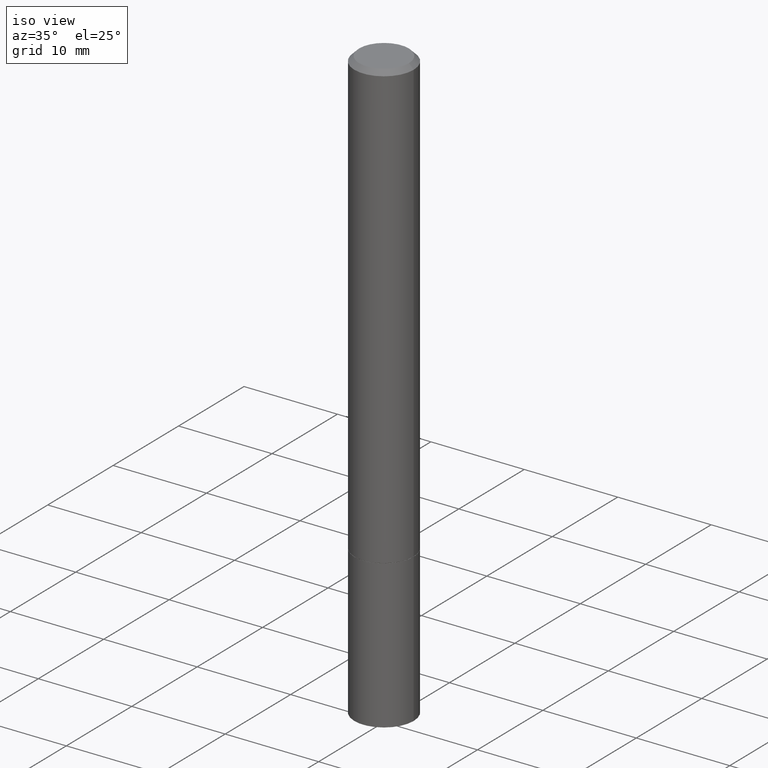
[diagram: clean part render]
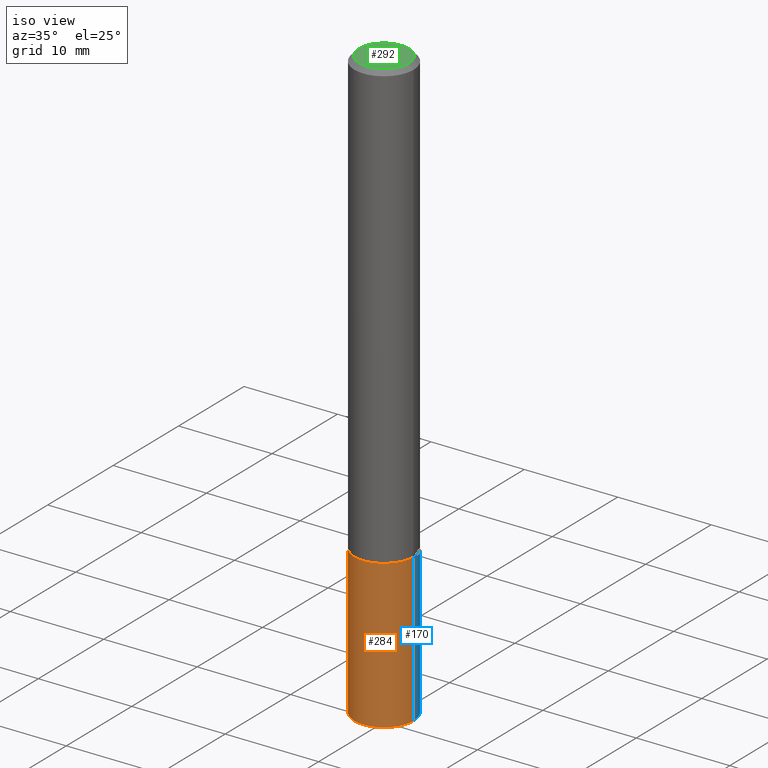
[diagram: same view with three faces highlighted in distinct colors, each labeled with its STEP entity id]
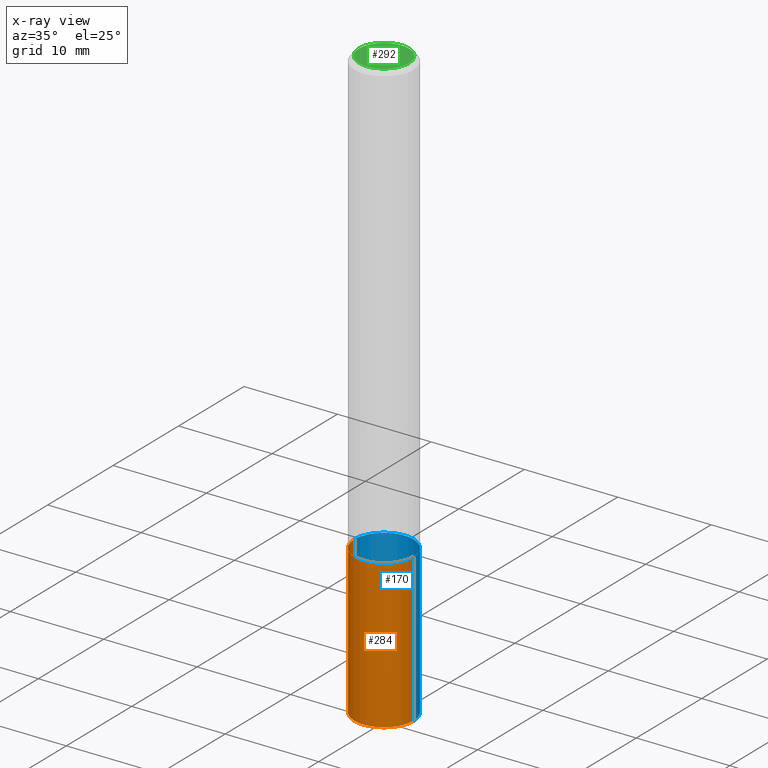
[diagram: x-ray of the same camera — body ghosted, the three highlighted faces saturated]
A machine part, iso view with three faces highlighted in distinct colors.
The next image is the same camera in x-ray (body ghosted, the three faces saturated) — at least one of them is partly hidden behind the body in this view.
Their STEP definitions:

[orange] entity #284 — the highlighted cylindrical surface (edge-blend (fillet) strip) has radius 3.175 mm, axis along (-0, 0, 1).
#5 = CARTESIAN_POINT ( 'NONE',  ( 0.1250000000000000278, -9.601573681818648281E-15, -2.500000000000000000 ) ) ;
#6 = CYLINDRICAL_SURFACE ( 'NONE', #139, 0.1250000000000000278 ) ;
#31 = CARTESIAN_POINT ( 'NONE',  ( 0.1250000000000000278, -7.419397845041682046E-15, -1.875000000000000000 ) ) ;
#34 = FACE_OUTER_BOUND ( 'NONE', #186, .T. ) ;
#38 = CARTESIAN_POINT ( 'NONE',  ( 0.1250000000000000278, -8.728703347107836346E-16, 6.095220969744921142E-30 ) ) ;
#40 = VERTEX_POINT ( 'NONE', #161 ) ;
#62 = LINE ( 'NONE', #38, #347 ) ;
#67 = CIRCLE ( 'NONE', #214, 0.1250000000000000278 ) ;
#92 = EDGE_CURVE ( 'NONE', #40, #356, #312, .T. ) ;
#102 = ORIENTED_EDGE ( 'NONE', *, *, #310, .T. ) ;
#122 = ORIENTED_EDGE ( 'NONE', *, *, #135, .T. ) ;
#135 = EDGE_CURVE ( 'NONE', #40, #242, #287, .T. ) ;
#139 = AXIS2_PLACEMENT_3D ( 'NONE', #265, #169, #264 ) ;
#148 = VECTOR ( 'NONE', #222, 39.37007874015748143 ) ;
#149 = ORIENTED_EDGE ( 'NONE', *, *, #210, .F. ) ;
#158 = ORIENTED_EDGE ( 'NONE', *, *, #92, .F. ) ;
#161 = CARTESIAN_POINT ( 'NONE',  ( -0.1250000000000000278, -6.749437009019256592E-15, -2.500000000000000000 ) ) ;
#167 = DIRECTION ( 'NONE',  ( -2.445468806185136877E-29, 3.491481338843145188E-15, 1.000000000000000000 ) ) ;
#169 = DIRECTION ( 'NONE',  ( -2.445468806185136597E-29, 3.491481338843145583E-15, 1.000000000000000000 ) ) ;
#186 = EDGE_LOOP ( 'NONE', ( #158, #122, #102, #149 ) ) ;
#188 = DIRECTION ( 'NONE',  ( -2.445468806185136597E-29, 3.491481338843145583E-15, 1.000000000000000000 ) ) ;
#205 = VERTEX_POINT ( 'NONE', #31 ) ;
#210 = EDGE_CURVE ( 'NONE', #356, #205, #67, .T. ) ;
#214 = AXIS2_PLACEMENT_3D ( 'NONE', #291, #319, #348 ) ;
#222 = DIRECTION ( 'NONE',  ( -2.445468806185136877E-29, 3.491481338843145188E-15, 1.000000000000000000 ) ) ;
#237 = CARTESIAN_POINT ( 'NONE',  ( -0.1250000000000000278, -6.749437009019256592E-15, -1.875000000000000000 ) ) ;
#242 = VERTEX_POINT ( 'NONE', #5 ) ;
#252 = CARTESIAN_POINT ( 'NONE',  ( -0.1250000000000000278, 8.881784197001254296E-16, -6.148668862818634329E-30 ) ) ;
#264 = DIRECTION ( 'NONE',  ( 1.000000000000000000, -6.982962677686267499E-15, 4.876176775795935793E-29 ) ) ;
#265 = CARTESIAN_POINT ( 'NONE',  ( 0.000000000000000000, 0.000000000000000000, 0.000000000000000000 ) ) ;
#280 = DIRECTION ( 'NONE',  ( 1.000000000000000000, -6.982962677686269077E-15, 0.000000000000000000 ) ) ;
#284 = ADVANCED_FACE ( 'NONE', ( #34 ), #6, .T. ) ;
#287 = CIRCLE ( 'NONE', #335, 0.1250000000000000278 ) ;
#291 = CARTESIAN_POINT ( 'NONE',  ( 4.585254011597131119E-29, -6.546527510330898707E-15, -1.875000000000000000 ) ) ;
#310 = EDGE_CURVE ( 'NONE', #242, #205, #62, .T. ) ;
#312 = LINE ( 'NONE', #252, #148 ) ;
#319 = DIRECTION ( 'NONE',  ( -2.445468806185136597E-29, 3.491481338843145583E-15, 1.000000000000000000 ) ) ;
#335 = AXIS2_PLACEMENT_3D ( 'NONE', #345, #188, #280 ) ;
#345 = CARTESIAN_POINT ( 'NONE',  ( 6.113672015462842613E-29, -8.728703347107864943E-15, -2.500000000000000000 ) ) ;
#347 = VECTOR ( 'NONE', #167, 39.37007874015748143 ) ;
#348 = DIRECTION ( 'NONE',  ( 1.000000000000000000, -6.982962677686269077E-15, 0.000000000000000000 ) ) ;
#356 = VERTEX_POINT ( 'NONE', #237 ) ;

[blue] entity #170 — the highlighted cylindrical surface (edge-blend (fillet) strip) has radius 3.175 mm, axis along (-0, 0, 1).
#2 = CARTESIAN_POINT ( 'NONE',  ( 0.000000000000000000, 0.000000000000000000, 0.000000000000000000 ) ) ;
#5 = CARTESIAN_POINT ( 'NONE',  ( 0.1250000000000000278, -9.601573681818648281E-15, -2.500000000000000000 ) ) ;
#24 = AXIS2_PLACEMENT_3D ( 'NONE', #340, #56, #61 ) ;
#31 = CARTESIAN_POINT ( 'NONE',  ( 0.1250000000000000278, -7.419397845041682046E-15, -1.875000000000000000 ) ) ;
#38 = CARTESIAN_POINT ( 'NONE',  ( 0.1250000000000000278, -8.728703347107836346E-16, 6.095220969744921142E-30 ) ) ;
#40 = VERTEX_POINT ( 'NONE', #161 ) ;
#56 = DIRECTION ( 'NONE',  ( -2.445468806185136597E-29, 3.491481338843145583E-15, 1.000000000000000000 ) ) ;
#61 = DIRECTION ( 'NONE',  ( 1.000000000000000000, -6.982962677686269077E-15, 0.000000000000000000 ) ) ;
#62 = LINE ( 'NONE', #38, #347 ) ;
#80 = CIRCLE ( 'NONE', #24, 0.1250000000000000278 ) ;
#87 = DIRECTION ( 'NONE',  ( 1.000000000000000000, -6.982962677686269077E-15, 0.000000000000000000 ) ) ;
#92 = EDGE_CURVE ( 'NONE', #40, #356, #312, .T. ) ;
#98 = AXIS2_PLACEMENT_3D ( 'NONE', #2, #134, #111 ) ;
#105 = CYLINDRICAL_SURFACE ( 'NONE', #98, 0.1250000000000000278 ) ;
#111 = DIRECTION ( 'NONE',  ( 1.000000000000000000, -6.982962677686267499E-15, 4.876176775795935793E-29 ) ) ;
#119 = CIRCLE ( 'NONE', #357, 0.1250000000000000278 ) ;
#120 = ORIENTED_EDGE ( 'NONE', *, *, #92, .T. ) ;
#121 = EDGE_CURVE ( 'NONE', #242, #40, #80, .T. ) ;
#130 = ORIENTED_EDGE ( 'NONE', *, *, #310, .F. ) ;
#134 = DIRECTION ( 'NONE',  ( -2.445468806185136597E-29, 3.491481338843145583E-15, 1.000000000000000000 ) ) ;
#148 = VECTOR ( 'NONE', #222, 39.37007874015748143 ) ;
#161 = CARTESIAN_POINT ( 'NONE',  ( -0.1250000000000000278, -6.749437009019256592E-15, -2.500000000000000000 ) ) ;
#162 = EDGE_CURVE ( 'NONE', #205, #356, #119, .T. ) ;
#167 = DIRECTION ( 'NONE',  ( -2.445468806185136877E-29, 3.491481338843145188E-15, 1.000000000000000000 ) ) ;
#170 = ADVANCED_FACE ( 'NONE', ( #249 ), #105, .T. ) ;
#205 = VERTEX_POINT ( 'NONE', #31 ) ;
#222 = DIRECTION ( 'NONE',  ( -2.445468806185136877E-29, 3.491481338843145188E-15, 1.000000000000000000 ) ) ;
#237 = CARTESIAN_POINT ( 'NONE',  ( -0.1250000000000000278, -6.749437009019256592E-15, -1.875000000000000000 ) ) ;
#242 = VERTEX_POINT ( 'NONE', #5 ) ;
#249 = FACE_OUTER_BOUND ( 'NONE', #331, .T. ) ;
#252 = CARTESIAN_POINT ( 'NONE',  ( -0.1250000000000000278, 8.881784197001254296E-16, -6.148668862818634329E-30 ) ) ;
#255 = DIRECTION ( 'NONE',  ( -2.445468806185136597E-29, 3.491481338843145583E-15, 1.000000000000000000 ) ) ;
#283 = ORIENTED_EDGE ( 'NONE', *, *, #162, .F. ) ;
#286 = CARTESIAN_POINT ( 'NONE',  ( 4.585254011597131119E-29, -6.546527510330898707E-15, -1.875000000000000000 ) ) ;
#310 = EDGE_CURVE ( 'NONE', #242, #205, #62, .T. ) ;
#312 = LINE ( 'NONE', #252, #148 ) ;
#331 = EDGE_LOOP ( 'NONE', ( #363, #120, #283, #130 ) ) ;
#340 = CARTESIAN_POINT ( 'NONE',  ( 6.113672015462842613E-29, -8.728703347107864943E-15, -2.500000000000000000 ) ) ;
#347 = VECTOR ( 'NONE', #167, 39.37007874015748143 ) ;
#356 = VERTEX_POINT ( 'NONE', #237 ) ;
#357 = AXIS2_PLACEMENT_3D ( 'NONE', #286, #255, #87 ) ;
#363 = ORIENTED_EDGE ( 'NONE', *, *, #121, .T. ) ;

[green] entity #292 — the highlighted planar face has unit normal (0, -0, -1).
#4 = CARTESIAN_POINT ( 'NONE',  ( 1.148236555768741665E-45, -1.639377487418492057E-31, -4.695363739110452099E-17 ) ) ;
#12 = EDGE_CURVE ( 'NONE', #104, #329, #195, .T. ) ;
#20 = ORIENTED_EDGE ( 'NONE', *, *, #23, .T. ) ;
#23 = EDGE_CURVE ( 'NONE', #329, #104, #171, .T. ) ;
#60 = DIRECTION ( 'NONE',  ( -2.445468806185136597E-29, 3.491481338843145583E-15, 1.000000000000000000 ) ) ;
#72 = EDGE_LOOP ( 'NONE', ( #20, #274 ) ) ;
#86 = CARTESIAN_POINT ( 'NONE',  ( 0.1049999999999998990, -8.238720831321568755E-16, -4.695363739109907908E-17 ) ) ;
#90 = FACE_OUTER_BOUND ( 'NONE', #72, .T. ) ;
#104 = VERTEX_POINT ( 'NONE', #86 ) ;
#112 = CARTESIAN_POINT ( 'NONE',  ( 1.148236555768741665E-45, -1.639377487418492057E-31, -4.695363739110452099E-17 ) ) ;
#114 = CARTESIAN_POINT ( 'NONE',  ( -0.1049999999999998990, 7.681258945454880957E-16, -4.695363739110977184E-17 ) ) ;
#133 = AXIS2_PLACEMENT_3D ( 'NONE', #315, #353, #196 ) ;
#165 = DIRECTION ( 'NONE',  ( 1.000000000000000000, -6.982962677686266711E-15, 4.874400871621243260E-29 ) ) ;
#171 = CIRCLE ( 'NONE', #183, 0.1049999999999998990 ) ;
#183 = AXIS2_PLACEMENT_3D ( 'NONE', #112, #60, #165 ) ;
#195 = CIRCLE ( 'NONE', #316, 0.1049999999999998990 ) ;
#196 = DIRECTION ( 'NONE',  ( -1.000000000000000000, 6.982962677686265922E-15, -4.876176775795935793E-29 ) ) ;
#234 = PLANE ( 'NONE',  #133 ) ;
#274 = ORIENTED_EDGE ( 'NONE', *, *, #12, .T. ) ;
#292 = ADVANCED_FACE ( 'NONE', ( #90 ), #234, .F. ) ;
#313 = DIRECTION ( 'NONE',  ( -2.445468806185136597E-29, 3.491481338843145583E-15, 1.000000000000000000 ) ) ;
#315 = CARTESIAN_POINT ( 'NONE',  ( 7.332110811570573341E-16, 0.1049999999999998990, -3.900823592740821971E-16 ) ) ;
#316 = AXIS2_PLACEMENT_3D ( 'NONE', #4, #313, #364 ) ;
#329 = VERTEX_POINT ( 'NONE', #114 ) ;
#353 = DIRECTION ( 'NONE',  ( 2.438088387897960049E-29, -3.491481338843145188E-15, -1.000000000000000000 ) ) ;
#364 = DIRECTION ( 'NONE',  ( 1.000000000000000000, -6.982962677686266711E-15, 4.874400871621243260E-29 ) ) ;